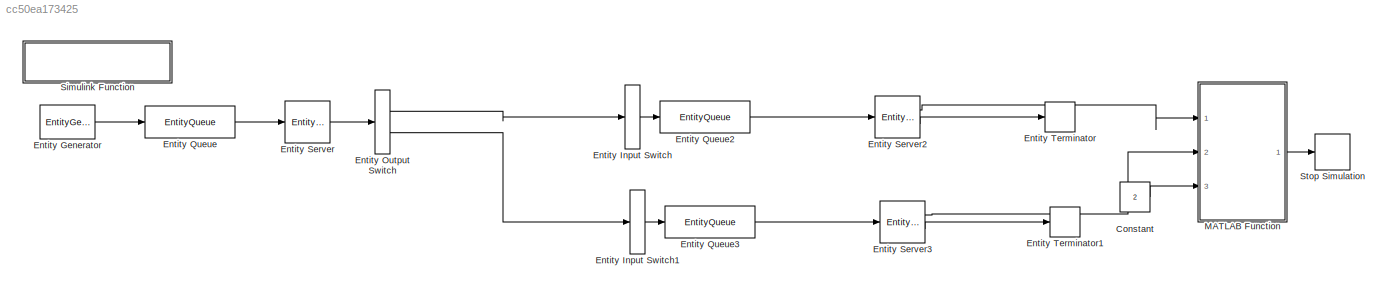
MODEL slx_cc50ea173425
KIND model
CONFIG AbsTol = auto
CONFIG EnableMultiTasking = on
CONFIG FixedStep = auto
CONFIG MaxStep = auto
CONFIG MinStep = auto
CONFIG RelTol = 1e-3
CONFIG SampleTimeConstraint = Unconstrained
CONFIG Solver = VariableStepAuto
CONFIG SolverName = VariableStepAuto
CONFIG StartTime = 0.0
CONFIG StopTime = 100
BLOCK [Constant] Constant
  SampleTime = -1
  Value = 2
BLOCK [EntityGenerator] Entity Generator
  EntityType = Structured
  EntityTypeName = Entity
  IntergenerationTimeAction = dt = exponentialArrivalTime();
  OutputPortMap = o3
  OutputPortMessageModes = m
  Ports = [0, 1]
  TimeSource = MATLAB action
BLOCK [EntityInputSwitch] Entity Input Switch
  InputPortMap = u1
  InputPortMessageModes = m
  NumberInputPorts = 1
  OutputPortMap = o0
  OutputPortMessageModes = m
  Ports = [1, 1]
BLOCK [EntityInputSwitch] Entity Input Switch1
  InputPortMap = u1
  InputPortMessageModes = m
  NumberInputPorts = 1
  OutputPortMap = o0
  OutputPortMessageModes = m
  Ports = [1, 1]
BLOCK [EntityOutputSwitch] Entity Output Switch
  InputPortMap = u1
  InputPortMessageModes = m
  OutputPortMap = o0,o1
  OutputPortMessageModes = m,m
  Ports = [1, 2]
  SwitchAttributeName = Attribute1
  SwitchingCriterion = Round robin
BLOCK [EntityQueue] Entity Queue
  Capacity = Inf
  InputPortMap = u0
  InputPortMessageModes = m
  MulticastTag = B
  OutputPortMap = o5
  OutputPortMessageModes = m
  Ports = [1, 1]
BLOCK [EntityQueue] Entity Queue2
  Capacity = 2
  InputPortMap = u0
  InputPortMessageModes = m
  MulticastTag = B
  OutputPortMap = o5
  OutputPortMessageModes = m
  Ports = [1, 1]
BLOCK [EntityQueue] Entity Queue3
  Capacity = 2
  InputPortMap = u0
  InputPortMessageModes = m
  MulticastTag = B
  OutputPortMap = o5
  OutputPortMessageModes = m
  Ports = [1, 1]
BLOCK [EntityServer] Entity Server
  Capacity = 3
  InputPortMap = u2
  InputPortMessageModes = m
  OutputPortMap = o9
  OutputPortMessageModes = m
  Ports = [1, 1]
  ServiceTimeAction = % Exponential service time with rate 1\nmean = 1;\ndt   = -mean * log(1 - rand());
  ServiceTimeSource = MATLAB action
BLOCK [EntityServer] Entity Server2
  Capacity = 3
  InputPortMap = u2
  InputPortMessageModes = m
  NumberEntitiesInBlock = on
  OutputPortMap = o1,o9
  OutputPortMessageModes = n,m
  Ports = [1, 2]
  ServiceTimeAction = % Exponential service time with rate 1\nmean = 0.2;\ndt   = -mean * log(1 - rand());
  ServiceTimeSource = MATLAB action
BLOCK [EntityServer] Entity Server3
  Capacity = 2
  InputPortMap = u2
  InputPortMessageModes = m
  NumberEntitiesInBlock = on
  OutputPortMap = o1,o9
  OutputPortMessageModes = n,m
  Ports = [1, 2]
  ServiceTimeAction = % Exponential service time with rate 1\nmean = 0.1;\ndt   = -mean * log(1 - rand());
  ServiceTimeSource = MATLAB action
BLOCK [EntityTerminator] Entity Terminator
  InputPortMap = u0
  InputPortMessageModes = m
  Ports = [1]
BLOCK [EntityTerminator] Entity Terminator1
  InputPortMap = u0
  InputPortMessageModes = m
  Ports = [1]
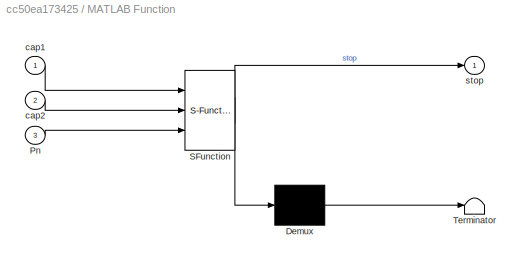
BLOCK [SubSystem] MATLAB Function
  ErrorFcn = Stateflow.Translate.translate
  PermitHierarchicalResolution = ExplicitOnly
  Ports = [3, 1]
  RequestExecContextInheritance = off
  SFBlockType = MATLAB Function
  TreatAsAtomicUnit = on
BLOCK [Demux] MATLAB Function/ Demux 
  Outputs = 1
  Ports = [1, 1]
BLOCK [S-Function] MATLAB Function/ SFunction 
  EnableBusSupport = on
  FunctionName = sf_sfun
  PortCounts = [3 2]
  Ports = [3, 2]
  SFcnIsStateOwnerBlock = off
  SFunctionDeploymentMode = off
  Tag = Stateflow S-Function simple 9
BLOCK [Terminator] MATLAB Function/ Terminator 
BLOCK [Inport] MATLAB Function/Pn
  IconDisplay = Port number
  Port = 3
BLOCK [Inport] MATLAB Function/cap1
  IconDisplay = Port number
BLOCK [Inport] MATLAB Function/cap2
  IconDisplay = Port number
  Port = 2
BLOCK [Outport] MATLAB Function/stop
  IconDisplay = Port number
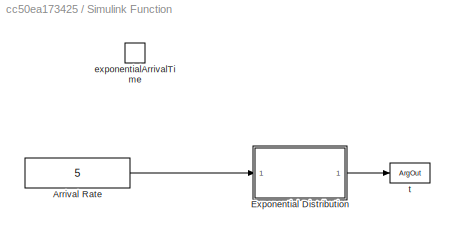
BLOCK [SubSystem] Simulink Function
  Ports = [0, 0, 0, 1]
  RequestExecContextInheritance = off
  TreatAsAtomicUnit = on
BLOCK [Constant] Simulink Function/Arrival Rate
  SampleTime = -1
  Value = 5
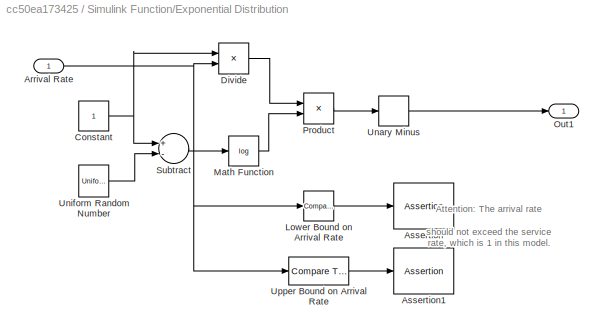
BLOCK [SubSystem] Simulink Function/Exponential Distribution
  Ports = [1, 1]
  RequestExecContextInheritance = off
BLOCK [Inport] Simulink Function/Exponential Distribution/Arrival Rate
  IconDisplay = Port number
BLOCK [Assertion] Simulink Function/Exponential Distribution/Assertion
BLOCK [Assertion] Simulink Function/Exponential Distribution/Assertion1
BLOCK [Constant] Simulink Function/Exponential Distribution/Constant
BLOCK [Product] Simulink Function/Exponential Distribution/Divide
  InputSameDT = off
  Inputs = */
  OutDataTypeStr = Inherit: Inherit via internal rule
  Ports = [2, 1]
  RndMeth = Floor
  SaturateOnIntegerOverflow = off
BLOCK [Reference] Simulink Function/Exponential Distribution/Lower Bound on Arrival Rate  REF=simulink/Logic and Bit
Operations/Compare
To Constant
  Ports = [1, 1]
  SourceBlock = simulink/Logic and Bit\nOperations/Compare\nTo Constant
  SourceProductBaseCode = SL
  SourceProductName = Simulink
  SourceType = Compare To Constant
BLOCK [Math] Simulink Function/Exponential Distribution/Math Function
  Operator = log
  Ports = [1, 1]
BLOCK [Outport] Simulink Function/Exponential Distribution/Out1
  IconDisplay = Port number
BLOCK [Product] Simulink Function/Exponential Distribution/Product
  InputSameDT = off
  OutDataTypeStr = Inherit: Inherit via internal rule
  Ports = [2, 1]
  SaturateOnIntegerOverflow = off
BLOCK [Sum] Simulink Function/Exponential Distribution/Subtract
  InputSameDT = off
  Inputs = +-
  OutDataTypeStr = Inherit: Inherit via internal rule
  Ports = [2, 1]
  SaturateOnIntegerOverflow = off
BLOCK [UnaryMinus] Simulink Function/Exponential Distribution/Unary Minus
BLOCK [UniformRandomNumber] Simulink Function/Exponential Distribution/Uniform Random Number
  Minimum = 0
  Seed = randi(5000)
BLOCK [Reference] Simulink Function/Exponential Distribution/Upper Bound on Arrival Rate   REF=simulink/Logic and Bit
Operations/Compare
To Constant
  Ports = [1, 1]
  SourceBlock = simulink/Logic and Bit\nOperations/Compare\nTo Constant
  SourceProductBaseCode = SL
  SourceProductName = Simulink
  SourceType = Compare To Constant
BLOCK [TriggerPort] Simulink Function/exponentialArrivalTime
  FunctionName = exponentialArrivalTime
  IsSimulinkFunction = on
  Ports = []
  StatesWhenEnabling = held
  TriggerType = function-call
  VariantControl = Variant
BLOCK [ArgOut] Simulink Function/t
  ArgumentName = t
  DisableCoverage = on
BLOCK [Stop] Stop Simulation
ANNOTATION Simulink Function/Exponential Distribution: Attention: The arrival rate should not exceed the service rate, which is 1 in this model.
LINE Constant:1 -> MATLAB Function:3
LINE Entity Generator:1 -> Entity Queue:1
LINE Entity Input Switch1:1 -> Entity Queue3:1
LINE Entity Input Switch:1 -> Entity Queue2:1
LINE Entity Output Switch:1 -> Entity Input Switch:1
LINE Entity Output Switch:2 -> Entity Input Switch1:1
LINE Entity Queue2:1 -> Entity Server2:1
LINE Entity Queue3:1 -> Entity Server3:1
LINE Entity Queue:1 -> Entity Server:1
LINE Entity Server2:1 -> MATLAB Function:1
LINE Entity Server2:2 -> Entity Terminator:1
LINE Entity Server3:1 -> MATLAB Function:2
LINE Entity Server3:2 -> Entity Terminator1:1
LINE Entity Server:1 -> Entity Output Switch:1
LINE MATLAB Function:1 -> Stop Simulation:1
LINE Simulink Function/Arrival Rate:1 -> Simulink Function/Exponential Distribution:1
NET Simulink Function/Exponential Distribution/Arrival Rate:1 -> Simulink Function/Exponential Distribution/Divide:2, Simulink Function/Exponential Distribution/Lower Bound on Arrival Rate:1, Simulink Function/Exponential Distribution/Upper Bound on Arrival Rate :1
NET Simulink Function/Exponential Distribution/Constant:1 -> Simulink Function/Exponential Distribution/Divide:1, Simulink Function/Exponential Distribution/Subtract:1
LINE Simulink Function/Exponential Distribution/Divide:1 -> Simulink Function/Exponential Distribution/Product:1
LINE Simulink Function/Exponential Distribution/Lower Bound on Arrival Rate:1 -> Simulink Function/Exponential Distribution/Assertion:1
LINE Simulink Function/Exponential Distribution/Math Function:1 -> Simulink Function/Exponential Distribution/Product:2
LINE Simulink Function/Exponential Distribution/Product:1 -> Simulink Function/Exponential Distribution/Unary Minus:1
LINE Simulink Function/Exponential Distribution/Subtract:1 -> Simulink Function/Exponential Distribution/Math Function:1
LINE Simulink Function/Exponential Distribution/Unary Minus:1 -> Simulink Function/Exponential Distribution/Out1:1
LINE Simulink Function/Exponential Distribution/Uniform Random Number:1 -> Simulink Function/Exponential Distribution/Subtract:2
LINE Simulink Function/Exponential Distribution/Upper Bound on Arrival Rate :1 -> Simulink Function/Exponential Distribution/Assertion1:1
LINE Simulink Function/Exponential Distribution:1 -> Simulink Function/t:1
note: NET lines group one-source signal fan-out (src -> all destinations, sorted); 1:1 wires keep LINE
CHART MATLAB Function states=1 transitions=1
  STATE_LABEL 'eML_blk_kernel()'
  STATE_LABEL 'SCRIPT:\nfunction stop  = fcn(cap1,cap2,Pn)\nmax1 = 3;\nmax2= 2;\nstop = 0;\nif Pn == 1\n    if cap1 == max1\n        stop = 1;\n    end\nend\nif Pn == 2\n    if cap2 == max2\n        stop = 1;\n    end\nend\n\n\nend\n'
